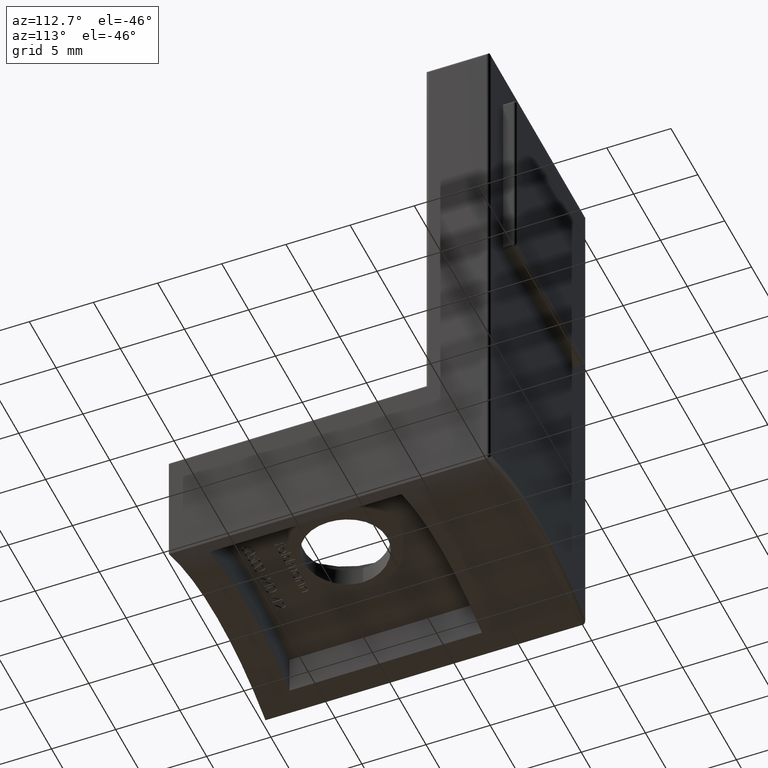
[diagram: clean part render]
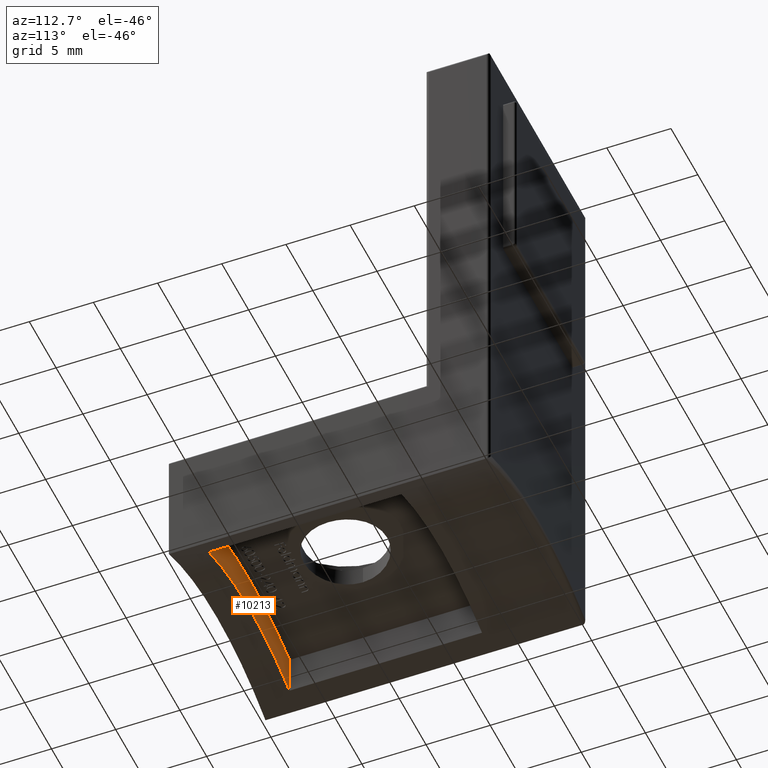
[diagram: same view with one face highlighted and labeled with its STEP entity id]
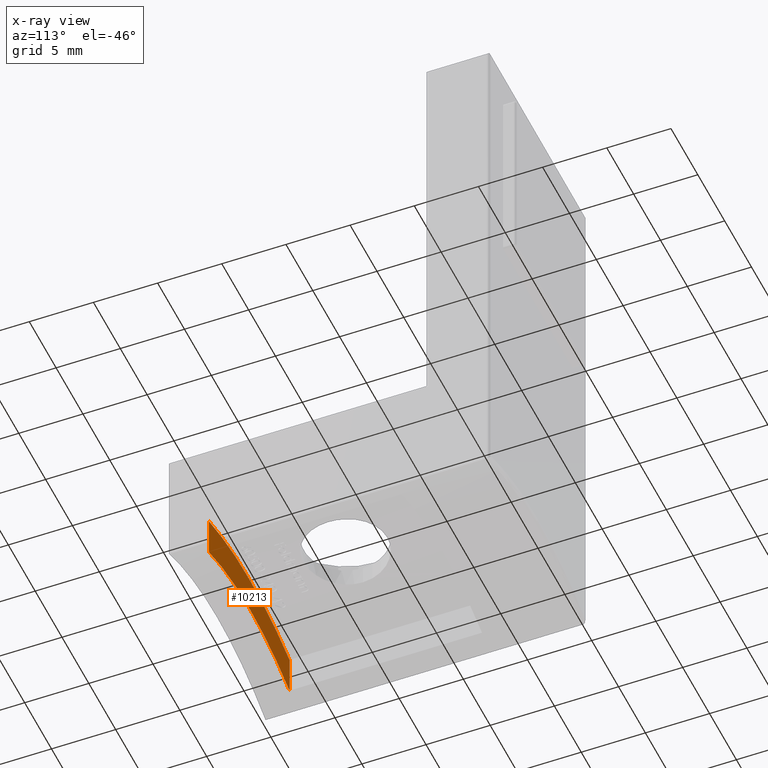
[diagram: x-ray of the same camera — body ghosted, the highlighted face saturated]
A machine part, auxiliary view. The second image highlights one B-rep face of the part: STEP entity #10213.
The next image is the same camera in x-ray: the body ghosted, the highlighted face saturated — about 0% of this face is hidden behind the body in this view.
In plain terms, the highlighted planar face has unit normal (0, -1, 0).
Its self-contained STEP definition (entity closure, byte-faithful):
#32 = AXIS2_PLACEMENT_3D ( 'NONE', #146, #12206, #5673 ) ;
#146 = CARTESIAN_POINT ( 'NONE',  ( 0.0000000000000000000, -22.50000000000000000, -21.19999999999999900 ) ) ;
#232 = VERTEX_POINT ( 'NONE', #11360 ) ;
#681 = DIRECTION ( 'NONE',  ( 3.552713678800500900E-015, 0.0000000000000000000, -1.000000000000000000 ) ) ;
#1522 = VERTEX_POINT ( 'NONE', #5595 ) ;
#1697 = DIRECTION ( 'NONE',  ( 0.0000000000000000000, 0.0000000000000000000, -1.000000000000000000 ) ) ;
#1931 = DIRECTION ( 'NONE',  ( 0.0000000000000000000, -0.0000000000000000000, -1.000000000000000000 ) ) ;
#2071 = AXIS2_PLACEMENT_3D ( 'NONE', #8327, #12857, #1931 ) ;
#2242 = CIRCLE ( 'NONE', #9408, 24.19999999999999600 ) ;
#2913 = AXIS2_PLACEMENT_3D ( 'NONE', #13044, #6467, #14128 ) ;
#3296 = FACE_OUTER_BOUND ( 'NONE', #5228, .T. ) ;
#3583 = VECTOR ( 'NONE', #6071, 1000.000000000000000 ) ;
#3870 = CARTESIAN_POINT ( 'NONE',  ( 7.500000000000003600, -22.50000000000000000, 46.00100000000000500 ) ) ;
#5000 = CARTESIAN_POINT ( 'NONE',  ( 0.0000000000000000000, -22.50000000000000000, -21.19999999999999900 ) ) ;
#5228 = EDGE_LOOP ( 'NONE', ( #13626, #12761, #10812, #13599, #6386, #7673 ) ) ;
#5595 = CARTESIAN_POINT ( 'NONE',  ( 7.500000000000003600, -22.50000000000000000, -1.370980861373903600 ) ) ;
#5673 = DIRECTION ( 'NONE',  ( 0.0000000000000000000, 0.0000000000000000000, -1.000000000000000000 ) ) ;
#6071 = DIRECTION ( 'NONE',  ( -0.0000000000000000000, -0.0000000000000000000, -1.000000000000000000 ) ) ;
#6108 = EDGE_CURVE ( 'NONE', #11633, #14141, #2242, .T. ) ;
#6386 = ORIENTED_EDGE ( 'NONE', *, *, #12813, .F. ) ;
#6388 = DIRECTION ( 'NONE',  ( -0.0000000000000000000, -0.0000000000000000000, -1.000000000000000000 ) ) ;
#6467 = DIRECTION ( 'NONE',  ( -0.0000000000000000000, 1.000000000000000000, -0.0000000000000000000 ) ) ;
#6916 = AXIS2_PLACEMENT_3D ( 'NONE', #5000, #8324, #681 ) ;
#7538 = LINE ( 'NONE', #3870, #3583 ) ;
#7673 = ORIENTED_EDGE ( 'NONE', *, *, #9138, .F. ) ;
#8117 = CARTESIAN_POINT ( 'NONE',  ( -7.499999999999999100, -22.50000000000000000, 1.808476698816896500 ) ) ;
#8324 = DIRECTION ( 'NONE',  ( -0.0000000000000000000, 1.000000000000000000, -0.0000000000000000000 ) ) ;
#8327 = CARTESIAN_POINT ( 'NONE',  ( 0.0000000000000000000, -22.50000000000000000, 46.00100000000000500 ) ) ;
#8499 = VERTEX_POINT ( 'NONE', #11471 ) ;
#8867 = CARTESIAN_POINT ( 'NONE',  ( 0.0000000000000000000, -22.50000000000000000, 2.999999999999999100 ) ) ;
#9098 = EDGE_CURVE ( 'NONE', #11633, #1522, #7538, .T. ) ;
#9138 = EDGE_CURVE ( 'NONE', #8499, #232, #13030, .T. ) ;
#9358 = CARTESIAN_POINT ( 'NONE',  ( 7.500000000000003600, -22.50000000000000000, 1.808476698816889700 ) ) ;
#9408 = AXIS2_PLACEMENT_3D ( 'NONE', #12525, #11460, #1697 ) ;
#9524 = EDGE_CURVE ( 'NONE', #14141, #12040, #9600, .T. ) ;
#9600 = CIRCLE ( 'NONE', #32, 24.19999999999999600 ) ;
#9810 = VECTOR ( 'NONE', #6388, 1000.000000000000000 ) ;
#10213 = ADVANCED_FACE ( 'NONE', ( #3296 ), #11789, .F. ) ;
#10611 = CIRCLE ( 'NONE', #2913, 21.19999999999999900 ) ;
#10727 = CARTESIAN_POINT ( 'NONE',  ( -7.499999999999999100, -22.50000000000000000, 46.00100000000000500 ) ) ;
#10812 = ORIENTED_EDGE ( 'NONE', *, *, #6108, .F. ) ;
#11153 = LINE ( 'NONE', #10727, #9810 ) ;
#11360 = CARTESIAN_POINT ( 'NONE',  ( 0.0000000000000000000, -22.50000000000000000, 0.0000000000000000000 ) ) ;
#11460 = DIRECTION ( 'NONE',  ( 0.0000000000000000000, -1.000000000000000000, 0.0000000000000000000 ) ) ;
#11471 = CARTESIAN_POINT ( 'NONE',  ( -7.499999999999999100, -22.50000000000000000, -1.370980861373903600 ) ) ;
#11633 = VERTEX_POINT ( 'NONE', #9358 ) ;
#11686 = EDGE_CURVE ( 'NONE', #12040, #8499, #11153, .T. ) ;
#11789 = PLANE ( 'NONE',  #2071 ) ;
#12040 = VERTEX_POINT ( 'NONE', #8117 ) ;
#12206 = DIRECTION ( 'NONE',  ( 0.0000000000000000000, -1.000000000000000000, 0.0000000000000000000 ) ) ;
#12525 = CARTESIAN_POINT ( 'NONE',  ( 0.0000000000000000000, -22.50000000000000000, -21.19999999999999900 ) ) ;
#12761 = ORIENTED_EDGE ( 'NONE', *, *, #9524, .F. ) ;
#12813 = EDGE_CURVE ( 'NONE', #232, #1522, #10611, .T. ) ;
#12857 = DIRECTION ( 'NONE',  ( 0.0000000000000000000, -1.000000000000000000, 0.0000000000000000000 ) ) ;
#13030 = CIRCLE ( 'NONE', #6916, 21.19999999999999900 ) ;
#13044 = CARTESIAN_POINT ( 'NONE',  ( 0.0000000000000000000, -22.50000000000000000, -21.19999999999999900 ) ) ;
#13599 = ORIENTED_EDGE ( 'NONE', *, *, #9098, .T. ) ;
#13626 = ORIENTED_EDGE ( 'NONE', *, *, #11686, .F. ) ;
#14128 = DIRECTION ( 'NONE',  ( 0.0000000000000000000, 0.0000000000000000000, -1.000000000000000000 ) ) ;
#14141 = VERTEX_POINT ( 'NONE', #8867 ) ;